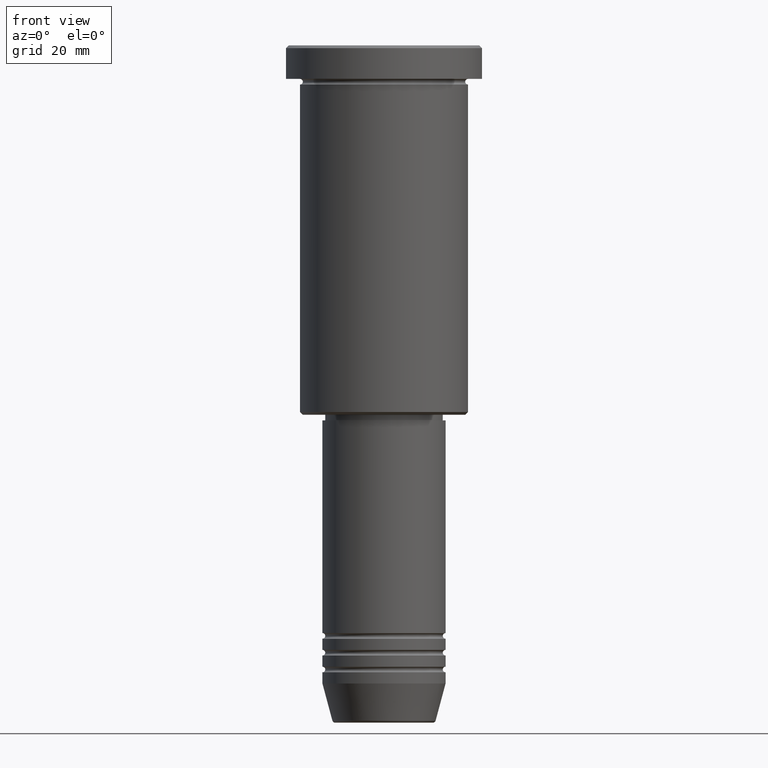
[diagram: clean part render]
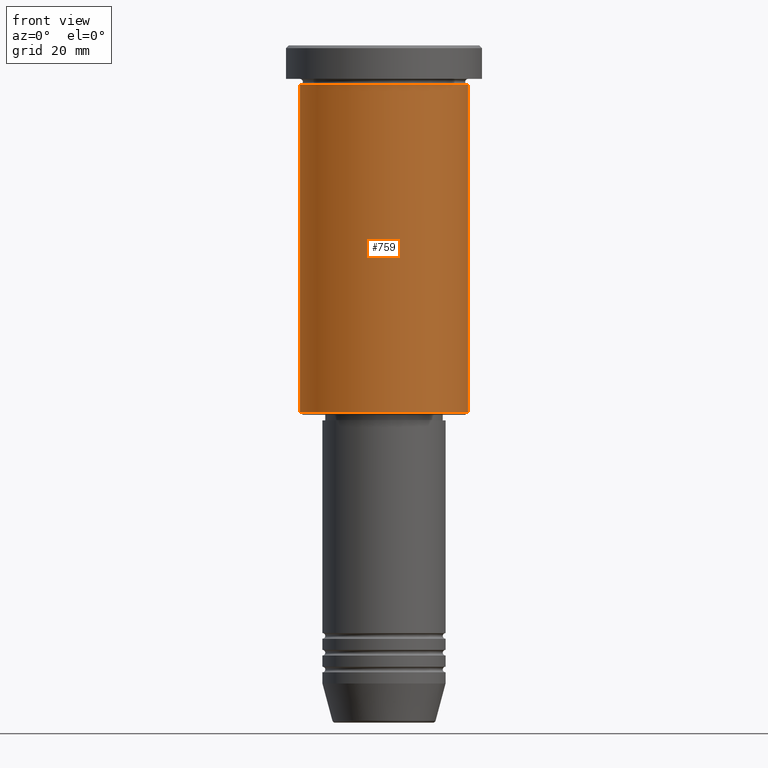
[diagram: same view with one face highlighted and labeled with its STEP entity id]
A machine part, front view. The second image highlights one B-rep face of the part: STEP entity #759.
In plain terms, the highlighted cylindrical surface (partial cylindrical patch) has radius 15 mm, axis along (-0, -0, 1).
Its self-contained STEP definition (entity closure, byte-faithful):
#12 = VECTOR ( 'NONE', #911, 1000.000000000000000 ) ;
#34 = CIRCLE ( 'NONE', #379, 15.00000000000000000 ) ;
#42 = CARTESIAN_POINT ( 'NONE',  ( 0.000000000000000000, 0.000000000000000000, -6.999999999999995559 ) ) ;
#90 = AXIS2_PLACEMENT_3D ( 'NONE', #818, #258, #1059 ) ;
#112 = EDGE_CURVE ( 'NONE', #123, #325, #1093, .T. ) ;
#123 = VERTEX_POINT ( 'NONE', #194 ) ;
#143 = ORIENTED_EDGE ( 'NONE', *, *, #867, .T. ) ;
#187 = DIRECTION ( 'NONE',  ( -0.000000000000000000, -0.000000000000000000, 1.000000000000000000 ) ) ;
#194 = CARTESIAN_POINT ( 'NONE',  ( 15.00000000000000000, 0.000000000000000000, -65.50000000000002842 ) ) ;
#236 = CIRCLE ( 'NONE', #952, 15.00000000000000000 ) ;
#258 = DIRECTION ( 'NONE',  ( -0.000000000000000000, -0.000000000000000000, 1.000000000000000000 ) ) ;
#325 = VERTEX_POINT ( 'NONE', #583 ) ;
#351 = EDGE_CURVE ( 'NONE', #444, #325, #236, .T. ) ;
#379 = AXIS2_PLACEMENT_3D ( 'NONE', #468, #836, #1106 ) ;
#391 = EDGE_CURVE ( 'NONE', #655, #444, #652, .T. ) ;
#410 = ORIENTED_EDGE ( 'NONE', *, *, #391, .F. ) ;
#444 = VERTEX_POINT ( 'NONE', #1108 ) ;
#468 = CARTESIAN_POINT ( 'NONE',  ( 0.000000000000000000, 0.000000000000000000, -65.50000000000002842 ) ) ;
#485 = CARTESIAN_POINT ( 'NONE',  ( 15.00000000000000000, 0.000000000000000000, 0.000000000000000000 ) ) ;
#536 = CARTESIAN_POINT ( 'NONE',  ( -15.00000000000000000, 1.836970198721029589E-15, -65.50000000000002842 ) ) ;
#541 = FACE_OUTER_BOUND ( 'NONE', #586, .T. ) ;
#566 = CARTESIAN_POINT ( 'NONE',  ( -15.00000000000000000, 1.836970198721029589E-15, 0.000000000000000000 ) ) ;
#583 = CARTESIAN_POINT ( 'NONE',  ( 15.00000000000000000, 0.000000000000000000, -6.999999999999995559 ) ) ;
#586 = EDGE_LOOP ( 'NONE', ( #410, #143, #1170, #939 ) ) ;
#643 = DIRECTION ( 'NONE',  ( 1.000000000000000000, 0.000000000000000000, 0.000000000000000000 ) ) ;
#652 = LINE ( 'NONE', #566, #12 ) ;
#655 = VERTEX_POINT ( 'NONE', #536 ) ;
#730 = VECTOR ( 'NONE', #1123, 1000.000000000000000 ) ;
#759 = ADVANCED_FACE ( 'NONE', ( #541 ), #907, .T. ) ;
#818 = CARTESIAN_POINT ( 'NONE',  ( 0.000000000000000000, 0.000000000000000000, 0.000000000000000000 ) ) ;
#836 = DIRECTION ( 'NONE',  ( -0.000000000000000000, -0.000000000000000000, 1.000000000000000000 ) ) ;
#867 = EDGE_CURVE ( 'NONE', #655, #123, #34, .T. ) ;
#907 = CYLINDRICAL_SURFACE ( 'NONE', #90, 15.00000000000000000 ) ;
#911 = DIRECTION ( 'NONE',  ( -0.000000000000000000, -0.000000000000000000, 1.000000000000000000 ) ) ;
#939 = ORIENTED_EDGE ( 'NONE', *, *, #351, .F. ) ;
#952 = AXIS2_PLACEMENT_3D ( 'NONE', #42, #187, #643 ) ;
#1059 = DIRECTION ( 'NONE',  ( 1.000000000000000000, 0.000000000000000000, 0.000000000000000000 ) ) ;
#1093 = LINE ( 'NONE', #485, #730 ) ;
#1106 = DIRECTION ( 'NONE',  ( -1.000000000000000000, 0.000000000000000000, 0.000000000000000000 ) ) ;
#1108 = CARTESIAN_POINT ( 'NONE',  ( -15.00000000000000000, 1.836970198721029589E-15, -6.999999999999995559 ) ) ;
#1123 = DIRECTION ( 'NONE',  ( -0.000000000000000000, -0.000000000000000000, 1.000000000000000000 ) ) ;
#1170 = ORIENTED_EDGE ( 'NONE', *, *, #112, .T. ) ;